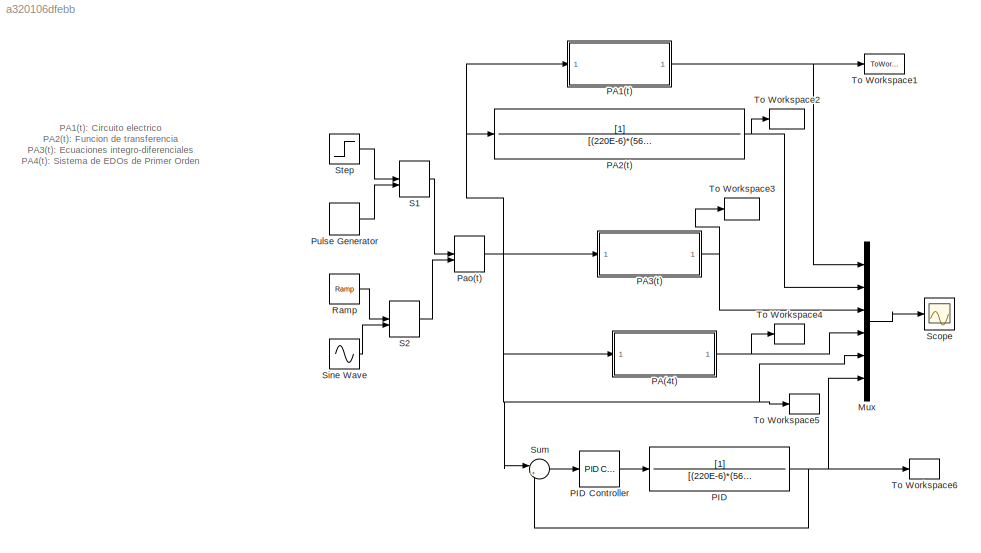
MODEL slx_a320106dfebb
KIND model
CONFIG AbsTol = auto
CONFIG EnableMultiTasking = off
CONFIG FixedStep = auto
CONFIG MaxStep = 1E-3
CONFIG MinStep = auto
CONFIG RelTol = 1e-3
CONFIG SampleTimeConstraint = Unconstrained
CONFIG SolverName = ode23t
CONFIG StartTime = 0.0
CONFIG StopTime = 10
BLOCK [Mux] Mux
  DisplayOption = bar
  Inputs = 6
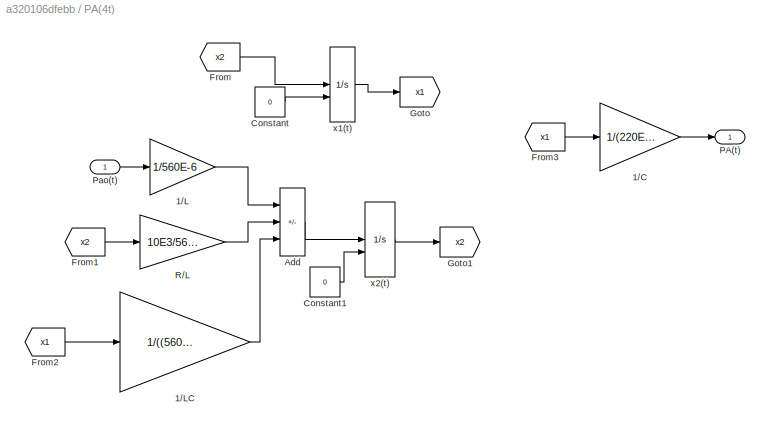
BLOCK [SubSystem] PA(4t)
BLOCK [Gain] PA(4t)/1//C
  Gain = 1/(220E-6)
BLOCK [Gain] PA(4t)/1//L
  Gain = 1/560E-6
BLOCK [Gain] PA(4t)/1//LC
  Gain = 1/((560E-6)*(220E-6))
BLOCK [Sum] PA(4t)/Add
  IconShape = rectangular
  Inputs = +--
BLOCK [Constant] PA(4t)/Constant
  Value = 0
BLOCK [Constant] PA(4t)/Constant1
  Value = 0
BLOCK [From] PA(4t)/From
  GotoTag = x2
BLOCK [From] PA(4t)/From1
  GotoTag = x2
BLOCK [From] PA(4t)/From2
  GotoTag = x1
BLOCK [From] PA(4t)/From3
  GotoTag = x1
BLOCK [Goto] PA(4t)/Goto
  GotoTag = x1
BLOCK [Goto] PA(4t)/Goto1
  GotoTag = x2
BLOCK [Outport] PA(4t)/PA(t)
BLOCK [Inport] PA(4t)/Pao(t)
BLOCK [Gain] PA(4t)/R//L
  Gain = 10E3/560E-6
BLOCK [Integrator] PA(4t)/x1(t)
  InitialConditionSource = external
BLOCK [Integrator] PA(4t)/x2(t)
  InitialConditionSource = external
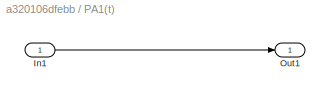
BLOCK [SubSystem] PA1(t)
BLOCK [Inport] PA1(t)/In1
BLOCK [Outport] PA1(t)/Out1
BLOCK [TransferFcn] PA2(t)
  Denominator = [(220E-6)*(560E-6),(10E3)*(220E-6),1]
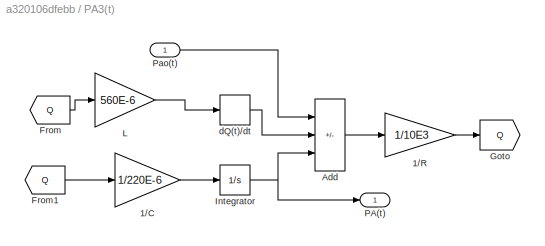
BLOCK [SubSystem] PA3(t)
BLOCK [Gain] PA3(t)/1//C
  Gain = 1/220E-6
BLOCK [Gain] PA3(t)/1//R
  Gain = 1/10E3
BLOCK [Sum] PA3(t)/Add
  IconShape = rectangular
  Inputs = +--
BLOCK [From] PA3(t)/From
  GotoTag = Q
BLOCK [From] PA3(t)/From1
  GotoTag = Q
BLOCK [Goto] PA3(t)/Goto
  GotoTag = Q
BLOCK [Integrator] PA3(t)/Integrator
BLOCK [Gain] PA3(t)/L
  Gain = 560E-6
BLOCK [Outport] PA3(t)/PA(t)
BLOCK [Inport] PA3(t)/Pao(t)
BLOCK [Derivative] PA3(t)/dQ(t)//dt
BLOCK [TransferFcn] PID
  Denominator = [(220E-6)*(560E-6),(10E3)*(220E-6),1]
BLOCK [Reference] PID Controller  REF=slpidlib/PID Controller
  LibrarySourceBlock = simulink/Continuous/PID Controller
  SourceBlock = slpidlib/PID Controller
  SourceType = PID 1dof
BLOCK [ManualSwitch] Pao(t)
  CurrentSetting = 0
BLOCK [DiscretePulseGenerator] Pulse Generator
  Period = 10
  PhaseDelay = 1
  PulseType = Time based
  PulseWidth = 10
BLOCK [Reference] Ramp  REF=simulink/Sources/Ramp
  SourceBlock = simulink/Sources/Ramp
  SourceType = Ramp
BLOCK [ManualSwitch] S1
  CurrentSetting = 0
BLOCK [ManualSwitch] S2
  CurrentSetting = 0
BLOCK [Scope] Scope
  ActiveDisplayYMaximum = 1.2509283062883261
  ActiveDisplayYMinimum = -1.2509283062883259
  ContainerLayout = {"WindowBounds":[1,1268,1918,860]}
  Floating = off
  GraphicalSettings = {"Style":{"BackgroundColor":[1,1,1],"AxesColor":[1,1,1],"LabelsColor":[0,0,0],"PreserveColors":false,"Visible":[false,true,true,true,true,false],"LineStyle":["-","-","-","-","-","-"],"LineWidth":[1.5,1.5,1.5,1.5,1.5,1.5],"BarWidth":[0.9,0.9,0.9,0.9,0.9,0.9],"LineColor":[[1,0,0],"auto","auto","auto","auto","auto"],"LineFaceAlpha":[1,1,1,1,1,1],"LineEdgeAlpha":[1,1,1,1,1,1],"Marker":["none","none","...<+2343ch>
  MultipleDisplayCache = [{"MaxYLimMag":1.2509283062883261,"MaxYLimReal":1.2509283062883261,"MinYLimMag":0,"MinYLimReal":-1.2509283062883259,"PlotAsMagnitudePhase":false,"ShowGrid":true,"ShowLegend":true,"Title":"%<SignalLabel>","YLabel":""}]
  NumInputPorts = 1
  ShowLegend = on
  Visible = on
  WasSavedAsWebScope = on
  WindowPosition = [1280.000000,32.000000,639.000000,765.000000,]
BLOCK [Sin] Sine Wave
  Frequency = pi/2
  SampleTime = 0
BLOCK [Step] Step
  Before = 1
  SampleTime = 0
  Time = 0
BLOCK [Sum] Sum
  Inputs = |+-
BLOCK [ToWorkspace] To Workspace1
  FixptAsFi = on
  MaxDataPoints = inf
  SampleTime = -1
  VariableName = PA1
BLOCK [ToWorkspace] To Workspace2
  FixptAsFi = on
  MaxDataPoints = inf
  SampleTime = -1
  VariableName = PA2
BLOCK [ToWorkspace] To Workspace3
  FixptAsFi = on
  MaxDataPoints = inf
  SampleTime = -1
  VariableName = PA3
BLOCK [ToWorkspace] To Workspace4
  FixptAsFi = on
  MaxDataPoints = inf
  SampleTime = -1
  VariableName = PA4
BLOCK [ToWorkspace] To Workspace5
  FixptAsFi = on
  MaxDataPoints = inf
  SampleTime = -1
  VariableName = Pao
BLOCK [ToWorkspace] To Workspace6
  FixptAsFi = on
  MaxDataPoints = inf
  SampleTime = -1
  VariableName = PID
ANNOTATION (root): PA1(t): Circuito electrico PA2(t): Funcion de transferencia PA3(t): Ecuaciones integro-diferenciales PA4(t): Sistema de EDOs de Primer Orden
LINE Mux:1 -> Scope:1
LINE PA(4t)/1//C:1 -> PA(4t)/PA(t):1
LINE PA(4t)/1//L:1 -> PA(4t)/Add:1
LINE PA(4t)/1//LC:1 -> PA(4t)/Add:3
LINE PA(4t)/Add:1 -> PA(4t)/x2(t):1
LINE PA(4t)/Constant1:1 -> PA(4t)/x2(t):2
LINE PA(4t)/Constant:1 -> PA(4t)/x1(t):2
LINE PA(4t)/From1:1 -> PA(4t)/R//L:1
LINE PA(4t)/From2:1 -> PA(4t)/1//LC:1
LINE PA(4t)/From3:1 -> PA(4t)/1//C:1
LINE PA(4t)/From:1 -> PA(4t)/x1(t):1
LINE PA(4t)/Pao(t):1 -> PA(4t)/1//L:1
LINE PA(4t)/R//L:1 -> PA(4t)/Add:2
LINE PA(4t)/x1(t):1 -> PA(4t)/Goto:1
LINE PA(4t)/x2(t):1 -> PA(4t)/Goto1:1
NET PA(4t):1 -> Mux:4, To Workspace4:1
LINE PA1(t)/In1:1 -> PA1(t)/Out1:1
NET PA1(t):1 -> Mux:1, To Workspace1:1
NET PA2(t):1 -> Mux:2, To Workspace2:1
LINE PA3(t)/1//C:1 -> PA3(t)/Integrator:1
LINE PA3(t)/1//R:1 -> PA3(t)/Goto:1
LINE PA3(t)/Add:1 -> PA3(t)/1//R:1
LINE PA3(t)/From1:1 -> PA3(t)/1//C:1
LINE PA3(t)/From:1 -> PA3(t)/L:1
NET PA3(t)/Integrator:1 -> PA3(t)/Add:3, PA3(t)/PA(t):1
LINE PA3(t)/L:1 -> PA3(t)/dQ(t)//dt:1
LINE PA3(t)/Pao(t):1 -> PA3(t)/Add:1
LINE PA3(t)/dQ(t)//dt:1 -> PA3(t)/Add:2
NET PA3(t):1 -> Mux:3, To Workspace3:1
LINE PID Controller:1 -> PID:1
NET PID:1 -> Mux:6, Sum:2, To Workspace6:1
NET Pao(t):1 -> Mux:5, PA(4t):1, PA1(t):1, PA2(t):1, PA3(t):1, Sum:1, To Workspace5:1
LINE Pulse Generator:1 -> S1:2
LINE Ramp:1 -> S2:1
LINE S1:1 -> Pao(t):1
LINE S2:1 -> Pao(t):2
LINE Sine Wave:1 -> S2:2
LINE Step:1 -> S1:1
LINE Sum:1 -> PID Controller:1
note: NET lines group one-source signal fan-out (src -> all destinations, sorted); 1:1 wires keep LINE
